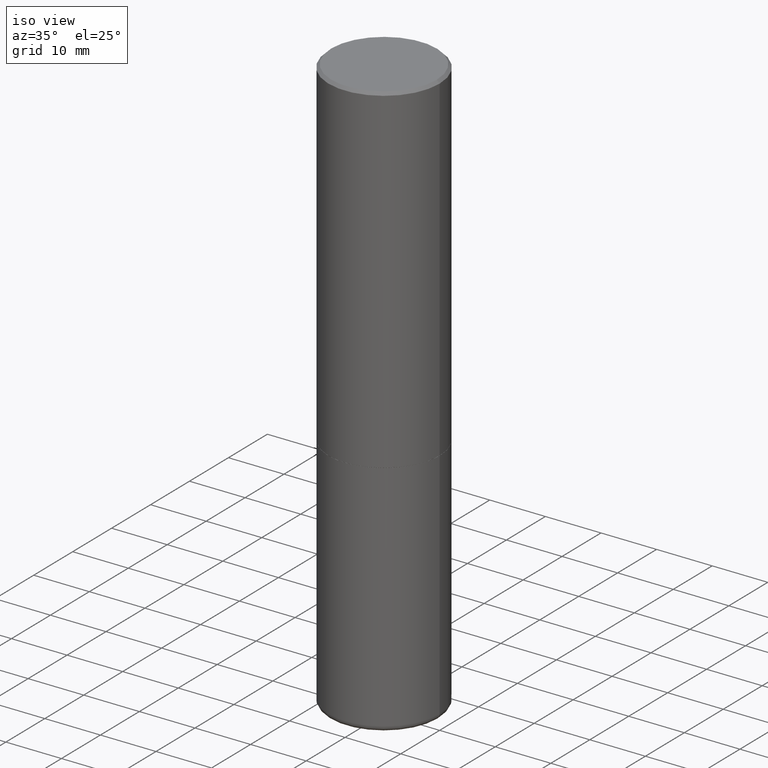
[diagram: clean part render]
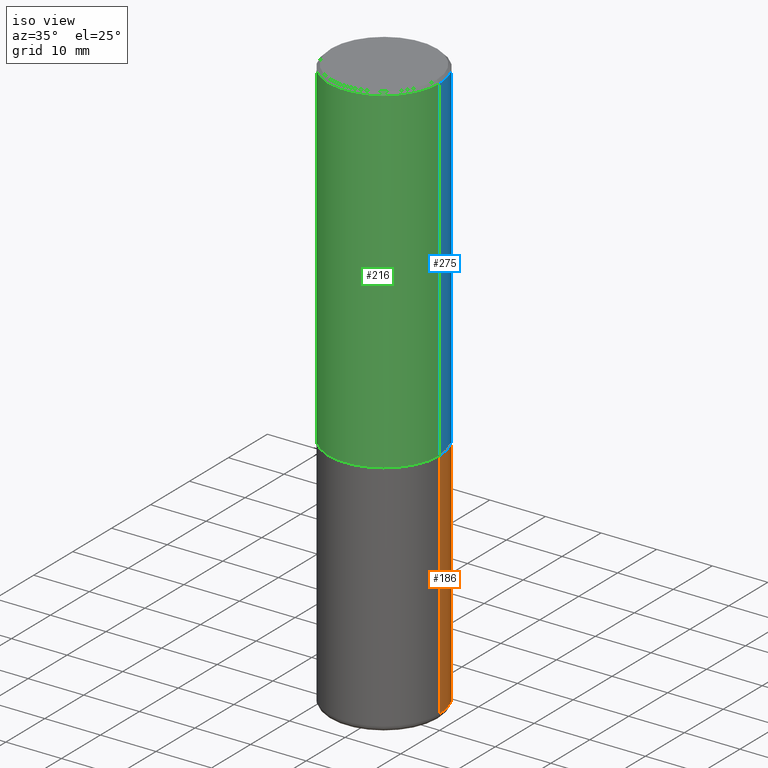
[diagram: same view with three faces highlighted in distinct colors, each labeled with its STEP entity id]
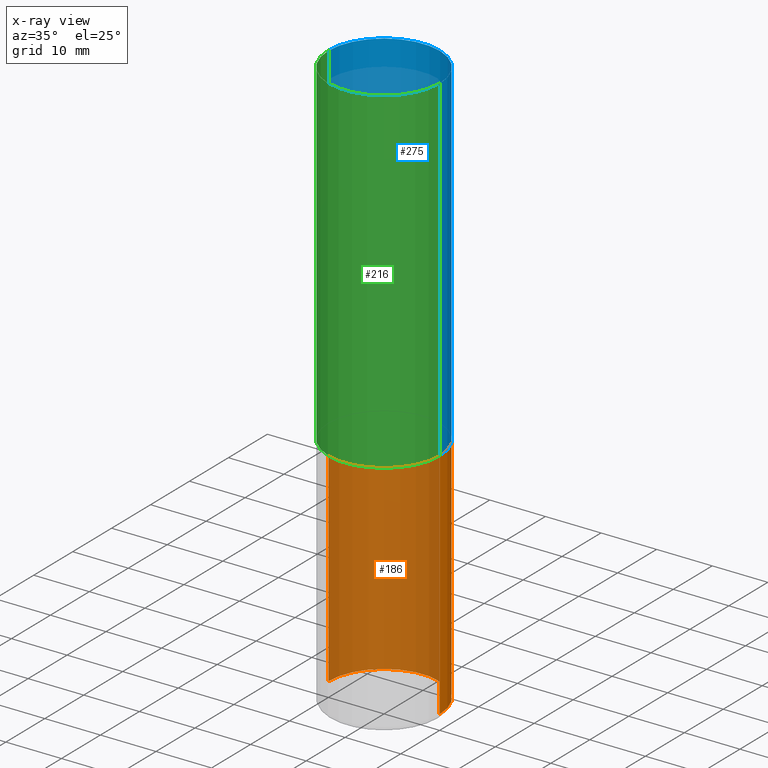
[diagram: x-ray of the same camera — body ghosted, the three highlighted faces saturated]
A machine part, iso view with three faces highlighted in distinct colors.
The next image is the same camera in x-ray (body ghosted, the three faces saturated) — at least one of them is partly hidden behind the body in this view.
Their STEP definitions:

[orange] entity #186 — the highlighted cylindrical surface (partial cylindrical patch) has radius 10 mm, axis along (-0, 0, 1).
#14 = DIRECTION ( 'NONE',  ( -2.445468806185136597E-29, 3.491481338843145583E-15, 1.000000000000000000 ) ) ;
#17 = VERTEX_POINT ( 'NONE', #366 ) ;
#33 = DIRECTION ( 'NONE',  ( -2.445468806185136877E-29, 3.491481338843145188E-15, 1.000000000000000000 ) ) ;
#44 = ORIENTED_EDGE ( 'NONE', *, *, #110, .T. ) ;
#50 = DIRECTION ( 'NONE',  ( -2.445468806185136877E-29, 3.491481338843145188E-15, 1.000000000000000000 ) ) ;
#52 = EDGE_CURVE ( 'NONE', #135, #147, #305, .T. ) ;
#74 = CARTESIAN_POINT ( 'NONE',  ( 5.873037884934224349E-29, -8.385141583365698841E-15, -2.401600000000000179 ) ) ;
#82 = CIRCLE ( 'NONE', #375, 0.3937000000000000499 ) ;
#107 = DIRECTION ( 'NONE',  ( -2.445468806185136597E-29, 3.491481338843145583E-15, 1.000000000000000000 ) ) ;
#110 = EDGE_CURVE ( 'NONE', #135, #17, #82, .T. ) ;
#122 = DIRECTION ( 'NONE',  ( 1.000000000000000000, -6.982962677686265922E-15, 4.876176775795935793E-29 ) ) ;
#135 = VERTEX_POINT ( 'NONE', #138 ) ;
#138 = CARTESIAN_POINT ( 'NONE',  ( 0.3937000000000001054, -1.690749838334792550E-14, -4.055100000000000371 ) ) ;
#140 = EDGE_CURVE ( 'NONE', #147, #238, #412, .T. ) ;
#147 = VERTEX_POINT ( 'NONE', #363 ) ;
#149 = EDGE_CURVE ( 'NONE', #17, #238, #157, .T. ) ;
#157 = LINE ( 'NONE', #382, #389 ) ;
#167 = DIRECTION ( 'NONE',  ( 1.000000000000000000, -6.982962677686267499E-15, 0.000000000000000000 ) ) ;
#186 = ADVANCED_FACE ( 'NONE', ( #316 ), #195, .T. ) ;
#195 = CYLINDRICAL_SURFACE ( 'NONE', #371, 0.3937000000000000499 ) ;
#238 = VERTEX_POINT ( 'NONE', #286 ) ;
#239 = DIRECTION ( 'NONE',  ( 1.000000000000000000, -6.982962677686265133E-15, 0.000000000000000000 ) ) ;
#273 = CARTESIAN_POINT ( 'NONE',  ( 0.3937000000000000499, -2.749192406205083217E-15, 1.919750796630860172E-29 ) ) ;
#285 = VECTOR ( 'NONE', #50, 39.37007874015748143 ) ;
#286 = CARTESIAN_POINT ( 'NONE',  ( -0.3937000000000000499, -8.474317029566754196E-15, -2.401600000000000179 ) ) ;
#288 = ORIENTED_EDGE ( 'NONE', *, *, #140, .F. ) ;
#296 = CARTESIAN_POINT ( 'NONE',  ( 9.916620555961347550E-29, -1.415830597714284070E-14, -4.055100000000000371 ) ) ;
#305 = LINE ( 'NONE', #273, #285 ) ;
#316 = FACE_OUTER_BOUND ( 'NONE', #387, .T. ) ;
#324 = ORIENTED_EDGE ( 'NONE', *, *, #149, .T. ) ;
#327 = ORIENTED_EDGE ( 'NONE', *, *, #52, .F. ) ;
#340 = AXIS2_PLACEMENT_3D ( 'NONE', #74, #107, #239 ) ;
#363 = CARTESIAN_POINT ( 'NONE',  ( 0.3937000000000000499, -1.113433398957078206E-14, -2.401600000000000179 ) ) ;
#366 = CARTESIAN_POINT ( 'NONE',  ( -0.3937000000000001054, -1.136089922645532513E-14, -4.055100000000000371 ) ) ;
#371 = AXIS2_PLACEMENT_3D ( 'NONE', #406, #385, #122 ) ;
#375 = AXIS2_PLACEMENT_3D ( 'NONE', #296, #14, #167 ) ;
#382 = CARTESIAN_POINT ( 'NONE',  ( -0.3937000000000000499, 2.797406750687514786E-15, -1.936584745033356735E-29 ) ) ;
#385 = DIRECTION ( 'NONE',  ( -2.445468806185136597E-29, 3.491481338843145583E-15, 1.000000000000000000 ) ) ;
#387 = EDGE_LOOP ( 'NONE', ( #44, #324, #288, #327 ) ) ;
#389 = VECTOR ( 'NONE', #33, 39.37007874015748143 ) ;
#406 = CARTESIAN_POINT ( 'NONE',  ( 0.000000000000000000, 0.000000000000000000, 0.000000000000000000 ) ) ;
#412 = CIRCLE ( 'NONE', #340, 0.3937000000000000499 ) ;

[blue] entity #275 — the highlighted cylindrical surface (partial cylindrical patch) has radius 10 mm, axis along (-0, 0, 1).
#2 = DIRECTION ( 'NONE',  ( -2.445468806185136597E-29, 3.491481338843145583E-15, 1.000000000000000000 ) ) ;
#3 = LINE ( 'NONE', #131, #76 ) ;
#32 = ORIENTED_EDGE ( 'NONE', *, *, #182, .T. ) ;
#61 = AXIS2_PLACEMENT_3D ( 'NONE', #343, #93, #188 ) ;
#63 = CARTESIAN_POINT ( 'NONE',  ( -0.3937000000000000499, 2.679362779428219918E-15, -0.02000000000000008715 ) ) ;
#65 = FACE_OUTER_BOUND ( 'NONE', #112, .T. ) ;
#72 = DIRECTION ( 'NONE',  ( -2.445468806185136877E-29, 3.491481338843145188E-15, 1.000000000000000000 ) ) ;
#73 = VERTEX_POINT ( 'NONE', #175 ) ;
#76 = VECTOR ( 'NONE', #72, 39.37007874015748143 ) ;
#88 = CIRCLE ( 'NONE', #61, 0.3937000000000002720 ) ;
#93 = DIRECTION ( 'NONE',  ( -2.445468806185136597E-29, 3.491481338843145583E-15, 1.000000000000000000 ) ) ;
#94 = DIRECTION ( 'NONE',  ( 1.000000000000000000, -6.982962677686265922E-15, 0.000000000000000000 ) ) ;
#112 = EDGE_LOOP ( 'NONE', ( #32, #244, #301, #248 ) ) ;
#115 = VERTEX_POINT ( 'NONE', #358 ) ;
#117 = EDGE_CURVE ( 'NONE', #270, #73, #3, .T. ) ;
#131 = CARTESIAN_POINT ( 'NONE',  ( 0.3937000000000001609, -2.749192406205084400E-15, 1.919750796630860732E-29 ) ) ;
#151 = VERTEX_POINT ( 'NONE', #63 ) ;
#155 = DIRECTION ( 'NONE',  ( 1.000000000000000000, -6.982962677686266711E-15, 4.876176775795935793E-29 ) ) ;
#175 = CARTESIAN_POINT ( 'NONE',  ( 0.3937000000000000499, -2.770807688499515734E-15, -0.02000000000000008715 ) ) ;
#179 = VECTOR ( 'NONE', #180, 39.37007874015748143 ) ;
#180 = DIRECTION ( 'NONE',  ( -2.445468806185136877E-29, 3.491481338843145188E-15, 1.000000000000000000 ) ) ;
#182 = EDGE_CURVE ( 'NONE', #270, #115, #88, .T. ) ;
#185 = AXIS2_PLACEMENT_3D ( 'NONE', #292, #290, #155 ) ;
#188 = DIRECTION ( 'NONE',  ( 1.000000000000000000, -6.982962677686265922E-15, 0.000000000000000000 ) ) ;
#203 = CYLINDRICAL_SURFACE ( 'NONE', #185, 0.3937000000000001609 ) ;
#221 = LINE ( 'NONE', #318, #179 ) ;
#241 = CIRCLE ( 'NONE', #249, 0.3937000000000000499 ) ;
#244 = ORIENTED_EDGE ( 'NONE', *, *, #344, .T. ) ;
#248 = ORIENTED_EDGE ( 'NONE', *, *, #117, .F. ) ;
#249 = AXIS2_PLACEMENT_3D ( 'NONE', #291, #2, #94 ) ;
#270 = VERTEX_POINT ( 'NONE', #347 ) ;
#271 = EDGE_CURVE ( 'NONE', #73, #151, #241, .T. ) ;
#275 = ADVANCED_FACE ( 'NONE', ( #65 ), #203, .T. ) ;
#290 = DIRECTION ( 'NONE',  ( -2.445468806185136597E-29, 3.491481338843145583E-15, 1.000000000000000000 ) ) ;
#291 = CARTESIAN_POINT ( 'NONE',  ( 4.890937612370294178E-31, -6.982962677686321191E-17, -0.02000000000000008715 ) ) ;
#292 = CARTESIAN_POINT ( 'NONE',  ( 0.000000000000000000, 0.000000000000000000, 0.000000000000000000 ) ) ;
#301 = ORIENTED_EDGE ( 'NONE', *, *, #271, .F. ) ;
#318 = CARTESIAN_POINT ( 'NONE',  ( -0.3937000000000001609, 2.797406750687515575E-15, -1.936584745033357296E-29 ) ) ;
#343 = CARTESIAN_POINT ( 'NONE',  ( 5.870592416128038746E-29, -8.381650102026855834E-15, -2.400600000000000289 ) ) ;
#344 = EDGE_CURVE ( 'NONE', #115, #151, #221, .T. ) ;
#347 = CARTESIAN_POINT ( 'NONE',  ( 0.3937000000000002720, -1.113084250823194063E-14, -2.400600000000000289 ) ) ;
#358 = CARTESIAN_POINT ( 'NONE',  ( -0.3937000000000003830, -1.428333113714341032E-15, -2.400600000000000289 ) ) ;

[green] entity #216 — the highlighted cylindrical surface (partial cylindrical patch) has radius 10 mm, axis along (-0, 0, 1).
#3 = LINE ( 'NONE', #131, #76 ) ;
#10 = ORIENTED_EDGE ( 'NONE', *, *, #400, .T. ) ;
#62 = AXIS2_PLACEMENT_3D ( 'NONE', #355, #222, #84 ) ;
#63 = CARTESIAN_POINT ( 'NONE',  ( -0.3937000000000000499, 2.679362779428219918E-15, -0.02000000000000008715 ) ) ;
#68 = AXIS2_PLACEMENT_3D ( 'NONE', #154, #148, #81 ) ;
#72 = DIRECTION ( 'NONE',  ( -2.445468806185136877E-29, 3.491481338843145188E-15, 1.000000000000000000 ) ) ;
#73 = VERTEX_POINT ( 'NONE', #175 ) ;
#76 = VECTOR ( 'NONE', #72, 39.37007874015748143 ) ;
#77 = CIRCLE ( 'NONE', #68, 0.3937000000000002720 ) ;
#81 = DIRECTION ( 'NONE',  ( 1.000000000000000000, -6.982962677686265922E-15, 0.000000000000000000 ) ) ;
#84 = DIRECTION ( 'NONE',  ( 1.000000000000000000, -6.982962677686266711E-15, 4.876176775795935793E-29 ) ) ;
#92 = CIRCLE ( 'NONE', #346, 0.3937000000000000499 ) ;
#96 = ORIENTED_EDGE ( 'NONE', *, *, #234, .F. ) ;
#97 = CYLINDRICAL_SURFACE ( 'NONE', #62, 0.3937000000000001609 ) ;
#102 = DIRECTION ( 'NONE',  ( 1.000000000000000000, -6.982962677686265922E-15, 0.000000000000000000 ) ) ;
#115 = VERTEX_POINT ( 'NONE', #358 ) ;
#117 = EDGE_CURVE ( 'NONE', #270, #73, #3, .T. ) ;
#131 = CARTESIAN_POINT ( 'NONE',  ( 0.3937000000000001609, -2.749192406205084400E-15, 1.919750796630860732E-29 ) ) ;
#132 = CARTESIAN_POINT ( 'NONE',  ( 4.890937612370294178E-31, -6.982962677686321191E-17, -0.02000000000000008715 ) ) ;
#148 = DIRECTION ( 'NONE',  ( -2.445468806185136597E-29, 3.491481338843145583E-15, 1.000000000000000000 ) ) ;
#151 = VERTEX_POINT ( 'NONE', #63 ) ;
#154 = CARTESIAN_POINT ( 'NONE',  ( 5.870592416128038746E-29, -8.381650102026855834E-15, -2.400600000000000289 ) ) ;
#175 = CARTESIAN_POINT ( 'NONE',  ( 0.3937000000000000499, -2.770807688499515734E-15, -0.02000000000000008715 ) ) ;
#179 = VECTOR ( 'NONE', #180, 39.37007874015748143 ) ;
#180 = DIRECTION ( 'NONE',  ( -2.445468806185136877E-29, 3.491481338843145188E-15, 1.000000000000000000 ) ) ;
#206 = EDGE_LOOP ( 'NONE', ( #416, #10, #354, #96 ) ) ;
#216 = ADVANCED_FACE ( 'NONE', ( #325 ), #97, .T. ) ;
#221 = LINE ( 'NONE', #318, #179 ) ;
#222 = DIRECTION ( 'NONE',  ( -2.445468806185136597E-29, 3.491481338843145583E-15, 1.000000000000000000 ) ) ;
#234 = EDGE_CURVE ( 'NONE', #151, #73, #92, .T. ) ;
#261 = DIRECTION ( 'NONE',  ( -2.445468806185136597E-29, 3.491481338843145583E-15, 1.000000000000000000 ) ) ;
#270 = VERTEX_POINT ( 'NONE', #347 ) ;
#318 = CARTESIAN_POINT ( 'NONE',  ( -0.3937000000000001609, 2.797406750687515575E-15, -1.936584745033357296E-29 ) ) ;
#325 = FACE_OUTER_BOUND ( 'NONE', #206, .T. ) ;
#344 = EDGE_CURVE ( 'NONE', #115, #151, #221, .T. ) ;
#346 = AXIS2_PLACEMENT_3D ( 'NONE', #132, #261, #102 ) ;
#347 = CARTESIAN_POINT ( 'NONE',  ( 0.3937000000000002720, -1.113084250823194063E-14, -2.400600000000000289 ) ) ;
#354 = ORIENTED_EDGE ( 'NONE', *, *, #117, .T. ) ;
#355 = CARTESIAN_POINT ( 'NONE',  ( 0.000000000000000000, 0.000000000000000000, 0.000000000000000000 ) ) ;
#358 = CARTESIAN_POINT ( 'NONE',  ( -0.3937000000000003830, -1.428333113714341032E-15, -2.400600000000000289 ) ) ;
#400 = EDGE_CURVE ( 'NONE', #115, #270, #77, .T. ) ;
#416 = ORIENTED_EDGE ( 'NONE', *, *, #344, .F. ) ;